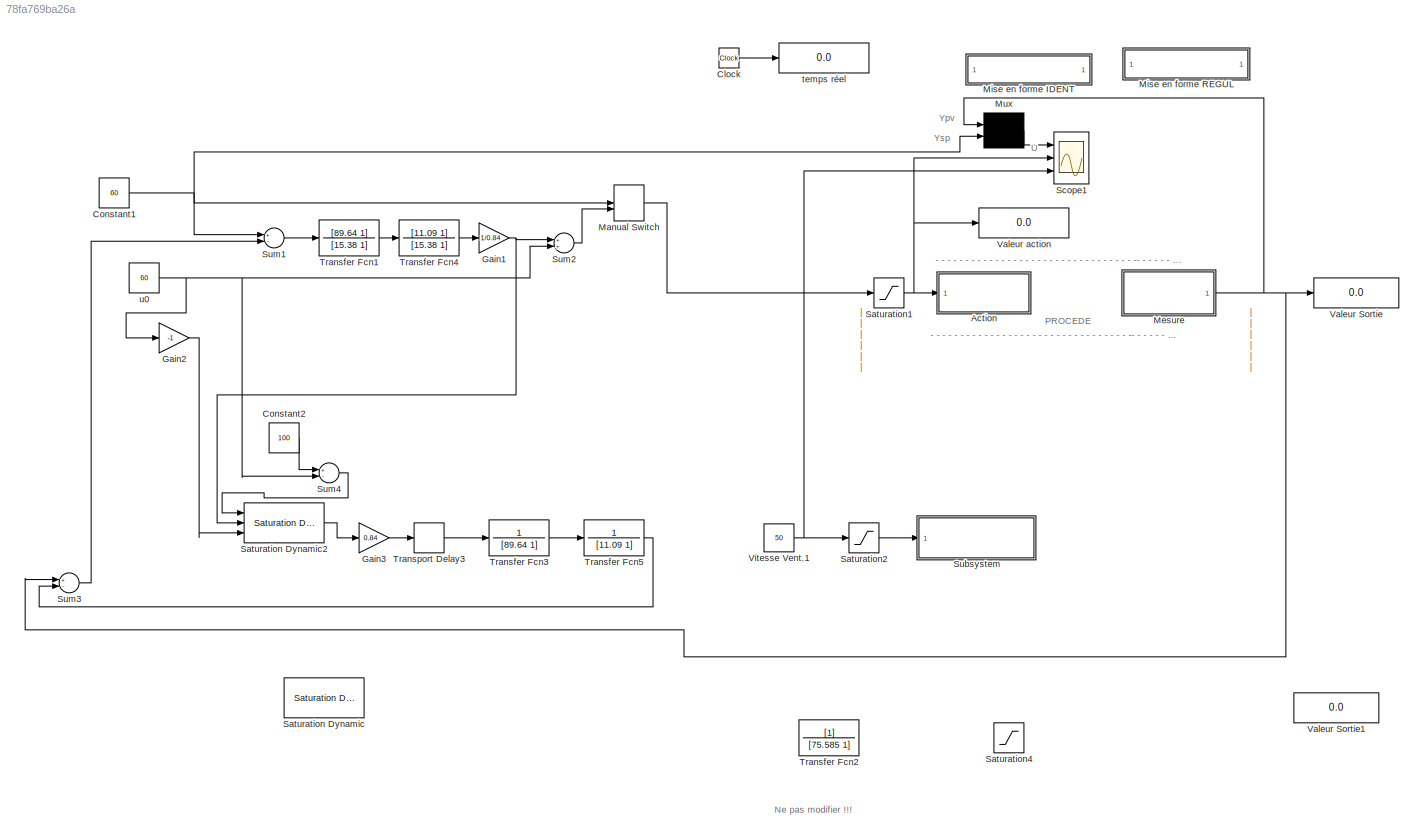
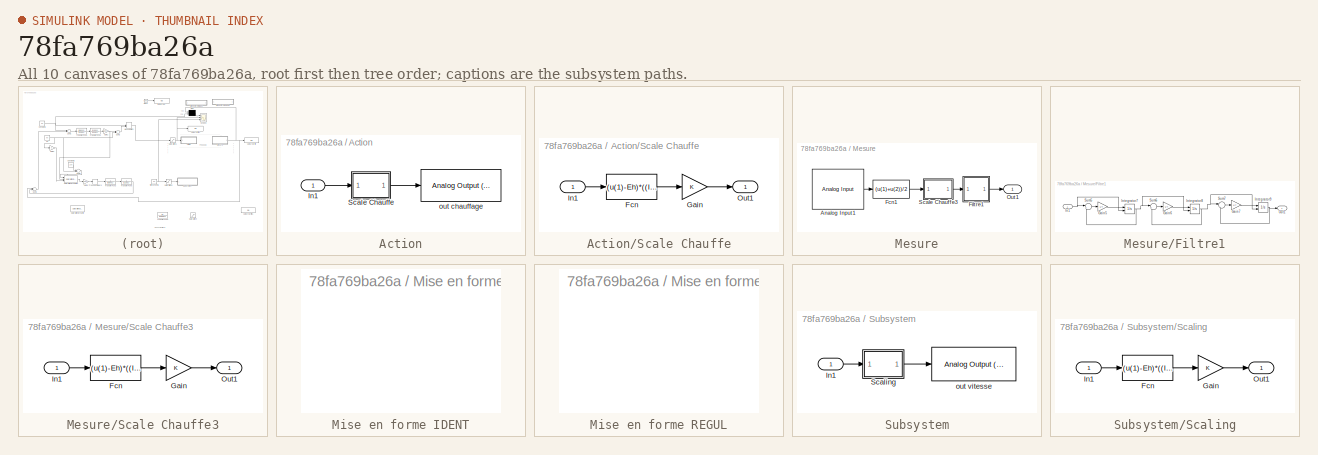
[diagram: thumbnail index - all 10 canvases of the model, root first then tree order]
MODEL slx_78fa769ba26a
KIND model
BLOCK [SubSystem] Action
  Ports = [1]
  RequestExecContextInheritance = off
BLOCK [Inport] Action/In1
  IconDisplay = Port number
BLOCK [SubSystem] Action/Scale Chauffe
  Ports = [1, 1]
  RequestExecContextInheritance = off
BLOCK [Fcn] Action/Scale Chauffe/Fcn
  Expr = (u(1)-Eh)*((Ih-Il)/(Eh-El))+Ih
BLOCK [Gain] Action/Scale Chauffe/Gain
  SampleTime = 0.1
BLOCK [Inport] Action/Scale Chauffe/In1
  IconDisplay = Port number
BLOCK [Outport] Action/Scale Chauffe/Out1
  IconDisplay = Port number
BLOCK [Reference] Action/out chauffage  REF=daqlib/Analog Output
(Single Sample)
  Channels = 1$0$$1$0$#0$1$$1$0$#
  Device = nidaq Dev1 (PCI-6221 (37-pin))
  DeviceMenu = nidaq Dev1 (PCI-6221 (37-pin))
  NChannelsSelected = 1
  NPorts = 1 per hardware channel
  ObjConstructor = analogoutput('nidaq','Dev1')
  Ports = [1]
  SourceBlock = daqlib/Analog Output\n(Single Sample)
  SourceType = Analog Output (Single Sample)
BLOCK [Clock] Clock
BLOCK [Constant] Constant1
  Value = 60
BLOCK [Constant] Constant2
  Value = 100
BLOCK [Gain] Gain1
  Gain = 1/0.84
  OutDataTypeStr = Inherit: Inherit via internal rule
  ParamDataTypeStr = Inherit: Inherit via internal rule
  SaturateOnIntegerOverflow = off
BLOCK [Gain] Gain2
  Gain = -1
  OutDataTypeStr = Inherit: Inherit via internal rule
  ParamDataTypeStr = Inherit: Inherit via internal rule
  SaturateOnIntegerOverflow = off
BLOCK [Gain] Gain3
  Gain = 0.84
  OutDataTypeStr = Inherit: Inherit via internal rule
  ParamDataTypeStr = Inherit: Inherit via internal rule
  SaturateOnIntegerOverflow = off
BLOCK [ManualSwitch] Manual Switch
  CurrentSetting = 0
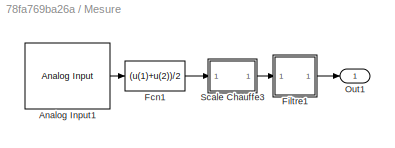
BLOCK [SubSystem] Mesure
  Ports = [0, 1]
  RequestExecContextInheritance = off
BLOCK [Reference] Mesure/Analog Input1  REF=daqlib/Analog Input
  AcqMode = 0
  ActualRate = 10
  Channels = 1$0$$1$#0$1$$1$#0$2$$1$#0$3$$1$#0$4$$1$#0$5$$1$#0$6$$1$#0$7$$1$#0$8$$1$#0$9$$1$#0$10$$1$#0$11$$1$#0$12$$1$#0$13$$1$#0$14$$1$#0$15$$1$#
  DataType = double
  Device = nidaq Dev1 (PCI-6221 (37-pin))
  DeviceMenu = nidaq Dev1 (PCI-6221 (37-pin))
  InputType = SingleEnded
  NChannelsSelected = 1
  NPorts = 1 per hardware channel
  ObjConstructor = analoginput('nidaq','Dev1')
  Ports = [0, 1]
  SampleRate = 10
  SamplesPerFrame = 2
  SignalType = Sample-based
  SourceBlock = daqlib/Analog Input
  SourceType = Analog Input
BLOCK [Fcn] Mesure/Fcn1
  Expr = (u(1)+u(2))/2
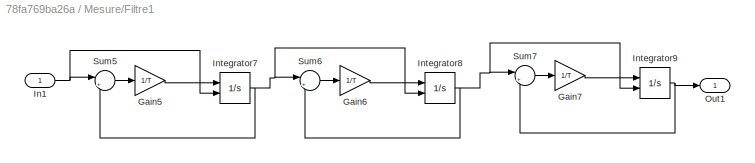
BLOCK [SubSystem] Mesure/Filtre1
  Ports = [1, 1]
  RequestExecContextInheritance = off
BLOCK [Gain] Mesure/Filtre1/Gain5
  Gain = 1/T
BLOCK [Gain] Mesure/Filtre1/Gain6
  Gain = 1/T
BLOCK [Gain] Mesure/Filtre1/Gain7
  Gain = 1/T
BLOCK [Inport] Mesure/Filtre1/In1
  IconDisplay = Port number
BLOCK [Integrator] Mesure/Filtre1/Integrator7
  InitialConditionSource = external
  Ports = [2, 1]
BLOCK [Integrator] Mesure/Filtre1/Integrator8
  InitialConditionSource = external
  Ports = [2, 1]
BLOCK [Integrator] Mesure/Filtre1/Integrator9
  InitialConditionSource = external
  Ports = [2, 1]
BLOCK [Outport] Mesure/Filtre1/Out1
  IconDisplay = Port number
BLOCK [Sum] Mesure/Filtre1/Sum5
  IconShape = round
  Inputs = |+-
  Ports = [2, 1]
BLOCK [Sum] Mesure/Filtre1/Sum6
  IconShape = round
  Inputs = |+-
  Ports = [2, 1]
BLOCK [Sum] Mesure/Filtre1/Sum7
  IconShape = round
  Inputs = |+-
  Ports = [2, 1]
BLOCK [Outport] Mesure/Out1
  IconDisplay = Port number
BLOCK [SubSystem] Mesure/Scale Chauffe3
  Ports = [1, 1]
  RequestExecContextInheritance = off
BLOCK [Fcn] Mesure/Scale Chauffe3/Fcn
  Expr = (u(1)-Eh)*((Ih-Il)/(Eh-El))+Ih
BLOCK [Gain] Mesure/Scale Chauffe3/Gain
  SampleTime = 0.1
BLOCK [Inport] Mesure/Scale Chauffe3/In1
  IconDisplay = Port number
BLOCK [Outport] Mesure/Scale Chauffe3/Out1
  IconDisplay = Port number
BLOCK [SubSystem] Mise en forme IDENT
  OpenFcn = t=ScopeData.time;A=[ScopeData.signals.values];y=A(:,1);u=A(:,3);plot(t,y,'black',t,u,'black');grid;figure(gcf)
  Ports = []
  RequestExecContextInheritance = off
BLOCK [SubSystem] Mise en forme REGUL
  OpenFcn = t=ScopeData.time;               \nA=[ScopeData.signals.values];   \ny=A(:,1);                       \nysp=A(:,2);                     \nu=A(:,3);                       \nfigure;                         \nsubplot(211);                   \nplot(t,y,'black',t,ysp,'black');\ngrid;                           \ntitle('Y_P_V - Y_S_P');         \nsubplot(212),                   \nplot(t,u,'black');              \ngrid...<+72ch>
  Ports = []
  RequestExecContextInheritance = off
BLOCK [Mux] Mux
  Inputs = 2
  Ports = [2, 1]
BLOCK [Reference] Saturation Dynamic  REF=simulink/Discontinuities/Saturation
Dynamic
  DoSatur = off
  LockScale = off
  OutDataType = fixdt(1, 16)
  OutDataTypeStr = Inherit: Same as second input
  OutMax = []
  OutMin = []
  OutScaling = 2^-10
  OutputDataTypeScalingMode = Same as second input
  Ports = [3, 1]
  RndMeth = Floor
  SourceBlock = simulink/Discontinuities/Saturation\nDynamic
  SourceType = Saturation Dynamic
BLOCK [Reference] Saturation Dynamic2  REF=simulink/Discontinuities/Saturation
Dynamic
  DoSatur = off
  LockScale = off
  OutDataType = fixdt(1, 16)
  OutDataTypeStr = Inherit: Same as second input
  OutMax = []
  OutMin = []
  OutScaling = 2^-10
  OutputDataTypeScalingMode = Same as second input
  Ports = [3, 1]
  RndMeth = Floor
  SourceBlock = simulink/Discontinuities/Saturation\nDynamic
  SourceType = Saturation Dynamic
BLOCK [Saturate] Saturation1
  InputPortMap = u0
  LowerLimit = 0
  Ports = [1, 1]
  UpperLimit = 100
BLOCK [Saturate] Saturation2
  InputPortMap = u0
  LowerLimit = 0
  Ports = [1, 1]
  UpperLimit = 100
BLOCK [Saturate] Saturation4
  InputPortMap = u0
  LowerLimit = 0
  Ports = [1, 1]
  UpperLimit = 100
BLOCK [Scope] Scope1
  DataFormat = StructureWithTime
  Floating = off
  LimitDataPoints = off
  MaxDataPoints = 25000
  NumInputPorts = 3
  Ports = [3]
  SampleInput = on
  SampleTime = 1
  SaveToWorkspace = on
  ShowLegends = off
  TickLabels = on
  TimeRange = 800
  YMax = 75~100~50
  YMin = 50~0~50
  ZoomMode = yonly
BLOCK [SubSystem] Subsystem
  Ports = [1]
  RequestExecContextInheritance = off
BLOCK [Inport] Subsystem/In1
  IconDisplay = Port number
BLOCK [SubSystem] Subsystem/Scaling
  Ports = [1, 1]
  RequestExecContextInheritance = off
BLOCK [Fcn] Subsystem/Scaling/Fcn
  Expr = (u(1)-Eh)*((Ih-Il)/(Eh-El))+Ih
BLOCK [Gain] Subsystem/Scaling/Gain
  SampleTime = 0.1
BLOCK [Inport] Subsystem/Scaling/In1
  IconDisplay = Port number
BLOCK [Outport] Subsystem/Scaling/Out1
  IconDisplay = Port number
BLOCK [Reference] Subsystem/out vitesse  REF=daqlib/Analog Output
(Single Sample)
  Channels = 0$0$$1$0$#1$1$$1$0$#
  Device = nidaq Dev1 (PCI-6221 (37-pin))
  DeviceMenu = nidaq Dev1 (PCI-6221 (37-pin))
  NChannelsSelected = 1
  NPorts = 1 per hardware channel
  ObjConstructor = analogoutput('nidaq','Dev1')
  Ports = [1]
  SourceBlock = daqlib/Analog Output\n(Single Sample)
  SourceType = Analog Output (Single Sample)
BLOCK [Sum] Sum1
  InputSameDT = off
  Inputs = +-
  OutDataTypeStr = Inherit: Inherit via internal rule
  Ports = [2, 1]
BLOCK [Sum] Sum2
  InputSameDT = off
  OutDataTypeStr = Inherit: Inherit via internal rule
  Ports = [2, 1]
BLOCK [Sum] Sum3
  InputSameDT = off
  Inputs = +-
  OutDataTypeStr = Inherit: Inherit via internal rule
  Ports = [2, 1]
BLOCK [Sum] Sum4
  InputSameDT = off
  Inputs = +-
  OutDataTypeStr = Inherit: Inherit via internal rule
  Ports = [2, 1]
BLOCK [TransferFcn] Transfer Fcn1
  Denominator = [15.38 1]
  Numerator = [89.64 1]
BLOCK [TransferFcn] Transfer Fcn2
  Denominator = [75.585 1]
BLOCK [TransferFcn] Transfer Fcn3
  Denominator = [89.64 1]
  Numerator = 1
BLOCK [TransferFcn] Transfer Fcn4
  Denominator = [15.38 1]
  Numerator = [11.09 1]
BLOCK [TransferFcn] Transfer Fcn5
  Denominator = [11.09 1]
  Numerator = 1
BLOCK [TransportDelay] Transport Delay3
  DelayTime = 13.84
  Ports = [1, 1]
BLOCK [Display] Valeur Sortie
  Decimation = 1
  Ports = [1]
BLOCK [Display] Valeur Sortie1
  Decimation = 1
  Ports = [1]
BLOCK [Display] Valeur action
  Decimation = 1
  Ports = [1]
BLOCK [Constant] Vitesse Vent.1
  Value = 50
BLOCK [Display] temps réel
  Decimation = 1
  Ports = [1]
BLOCK [Constant] u0
  Value = 60
ANNOTATION (root): Ne pas modifier !!!
ANNOTATION (root): - - - - - - - - - - - - - - - - - - - - - - - - - - - - - - - - - -- - - - - - - - - - - - - - - - - - - - -- - - - - - -- - -
ANNOTATION (root): - - - - - - - - - - - - - - - - - - - - - - - - - - - - - - - - - -- - - - - - - - - - - - - - - - - - - - -- - - - - - - -- - -
ANNOTATION (root): PROCEDE
ANNOTATION (root): U
ANNOTATION (root): Ypv
ANNOTATION (root): Ysp
ANNOTATION (root): | | | | | |
LINE Action/In1:1 -> Action/Scale Chauffe:1
LINE Action/Scale Chauffe/Fcn:1 -> Action/Scale Chauffe/Gain:1
LINE Action/Scale Chauffe/Gain:1 -> Action/Scale Chauffe/Out1:1
LINE Action/Scale Chauffe/In1:1 -> Action/Scale Chauffe/Fcn:1
LINE Action/Scale Chauffe:1 -> Action/out chauffage:1
LINE Clock:1 -> temps réel:1
NET Constant1:1 -> Manual Switch:1, Mux:2, Sum1:1
LINE Constant2:1 -> Sum4:1
NET Gain1:1 -> Saturation Dynamic2:2, Sum2:1
LINE Gain2:1 -> Saturation Dynamic2:3
LINE Gain3:1 -> Transport Delay3:1
LINE Manual Switch:1 -> Saturation1:1
LINE Mesure/Analog Input1:1 -> Mesure/Fcn1:1
LINE Mesure/Fcn1:1 -> Mesure/Scale Chauffe3:1
LINE Mesure/Filtre1/Gain5:1 -> Mesure/Filtre1/Integrator7:1
LINE Mesure/Filtre1/Gain6:1 -> Mesure/Filtre1/Integrator8:1
LINE Mesure/Filtre1/Gain7:1 -> Mesure/Filtre1/Integrator9:1
NET Mesure/Filtre1/In1:1 -> Mesure/Filtre1/Integrator7:2, Mesure/Filtre1/Sum5:1
NET Mesure/Filtre1/Integrator7:1 -> Mesure/Filtre1/Integrator8:2, Mesure/Filtre1/Sum5:2, Mesure/Filtre1/Sum6:1
NET Mesure/Filtre1/Integrator8:1 -> Mesure/Filtre1/Integrator9:2, Mesure/Filtre1/Sum6:2, Mesure/Filtre1/Sum7:1
NET Mesure/Filtre1/Integrator9:1 -> Mesure/Filtre1/Out1:1, Mesure/Filtre1/Sum7:2
LINE Mesure/Filtre1/Sum5:1 -> Mesure/Filtre1/Gain5:1
LINE Mesure/Filtre1/Sum6:1 -> Mesure/Filtre1/Gain6:1
LINE Mesure/Filtre1/Sum7:1 -> Mesure/Filtre1/Gain7:1
LINE Mesure/Filtre1:1 -> Mesure/Out1:1
LINE Mesure/Scale Chauffe3/Fcn:1 -> Mesure/Scale Chauffe3/Gain:1
LINE Mesure/Scale Chauffe3/Gain:1 -> Mesure/Scale Chauffe3/Out1:1
LINE Mesure/Scale Chauffe3/In1:1 -> Mesure/Scale Chauffe3/Fcn:1
LINE Mesure/Scale Chauffe3:1 -> Mesure/Filtre1:1
NET Mesure:1 -> Mux:1, Sum3:1, Valeur Sortie:1
LINE Mux:1 -> Scope1:1
LINE Saturation Dynamic2:1 -> Gain3:1
NET Saturation1:1 -> Action:1, Scope1:2, Valeur action:1
LINE Saturation2:1 -> Subsystem:1
LINE Subsystem/In1:1 -> Subsystem/Scaling:1
LINE Subsystem/Scaling/Fcn:1 -> Subsystem/Scaling/Gain:1
LINE Subsystem/Scaling/Gain:1 -> Subsystem/Scaling/Out1:1
LINE Subsystem/Scaling/In1:1 -> Subsystem/Scaling/Fcn:1
LINE Subsystem/Scaling:1 -> Subsystem/out vitesse:1
LINE Sum1:1 -> Transfer Fcn1:1
LINE Sum2:1 -> Manual Switch:2
LINE Sum3:1 -> Sum1:2
LINE Sum4:1 -> Saturation Dynamic2:1
LINE Transfer Fcn1:1 -> Transfer Fcn4:1
LINE Transfer Fcn3:1 -> Transfer Fcn5:1
LINE Transfer Fcn4:1 -> Gain1:1
LINE Transfer Fcn5:1 -> Sum3:2
LINE Transport Delay3:1 -> Transfer Fcn3:1
NET Vitesse Vent.1:1 -> Saturation2:1, Scope1:3
NET u0:1 -> Gain2:1, Sum2:2, Sum4:2
note: NET lines group one-source signal fan-out (src -> all destinations, sorted); 1:1 wires keep LINE
